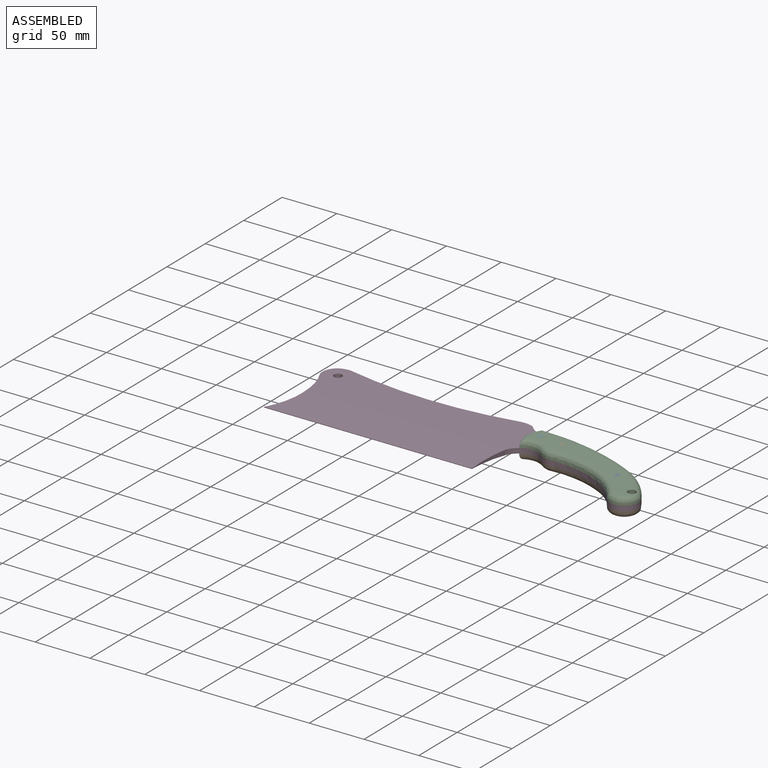
[diagram: assembled view]
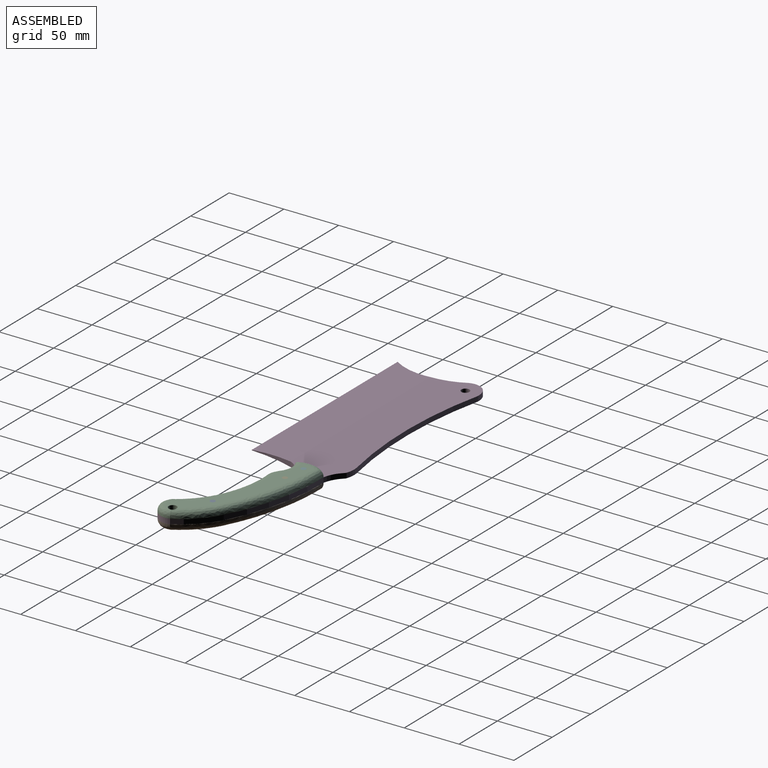
[diagram: assembled view, second angle]
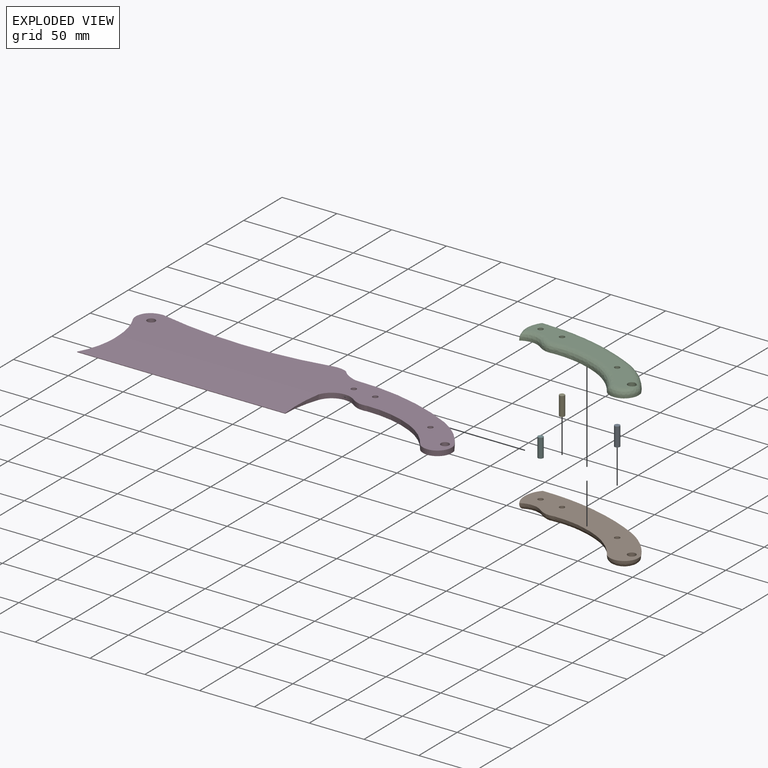
[diagram: exploded view]
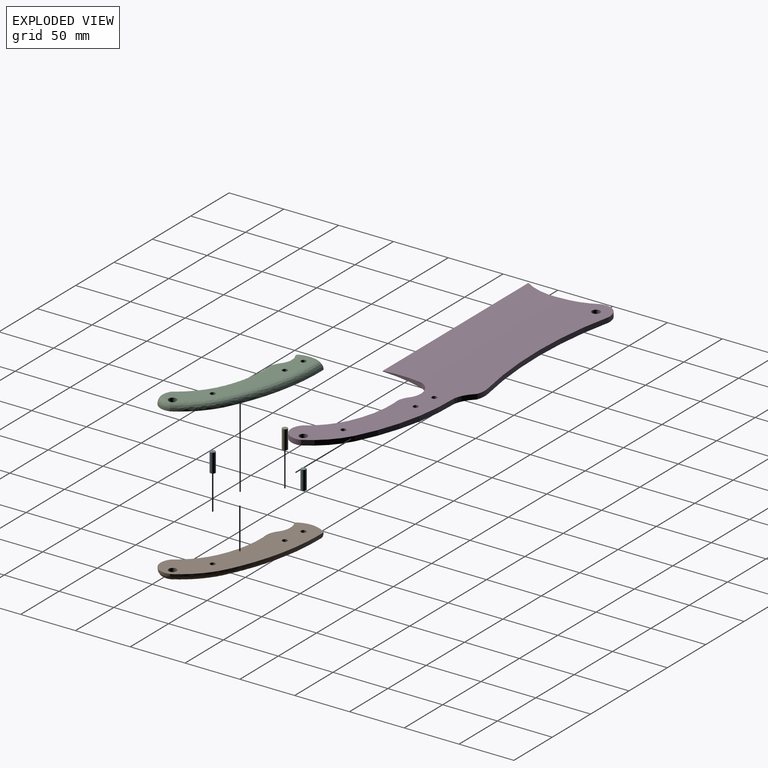
[diagram: exploded view, second angle]
ASSEMBLY  parts=6 mates=5
PART A: 3 faces, bbox 4.8x4.8x17.3 mm
  f0: cylinder r=2.37mm len=17.27mm, axis (0,0,-1), area 257.7mm2, adj f1,f2
  f1: plane 4.75x4.75mm, normal (0,0,1), area 17.7mm2, adj f0
  f2: plane 4.75x4.75mm, normal (0,0,-1), area 17.7mm2, adj f0
PART B: 24 faces, bbox 132.8x70.3x6.4 mm
  f0: cylinder r=74.91mm len=28.88mm, axis (0,0,-1), area 10.5mm2, adj f1,f12,f13,f19
  f1: cylinder r=204.16mm len=97.18mm, axis (0,0,-1), area 25.6mm2, adj f0,f2,f13,f21
  f2: cylinder r=22.68mm len=27.9mm, axis (0,0,-1), area 7.7mm2, adj f1,f3,f13,f23
  f3: cylinder r=17.37mm len=18.88mm, axis (0,0,-1), area 5.1mm2, adj f2,f4,f13,f22
  f4: cylinder r=20.76mm len=8.05mm, axis (0,0,-1), area 2.3mm2, adj f3,f5,f13,f20
  f5: cylinder r=21.4mm len=7.73mm, axis (0,0,-1), area 2mm2, adj f4,f6,f13,f18
  f6: cylinder r=97.54mm len=45.24mm, axis (0,0,-1), area 11.9mm2, adj f5,f7,f13,f16
  f7: cylinder r=65.81mm len=26.4mm, axis (0,0,-1), area 9.1mm2, adj f6,f12,f13,f15
  f8: cylinder r=2.37mm len=6.35mm, axis (0,0,-1), area 94.5mm2, adj f13,f14
  f9: cylinder r=2.37mm len=6.35mm, axis (0,0,-1), area 94.5mm2, adj f13,f14
  f10: cylinder r=2.37mm len=6.35mm, axis (0,0,-1), area 94.5mm2, adj f13,f14
  f11: cylinder r=3.68mm len=7.36mm, axis (0,0,-1), area 144.9mm2, adj f13,f14,f17,f19
  f12: cylinder r=13.18mm len=22.38mm, axis (0,0,-1), area 8.9mm2, adj f0,f7,f13,f17
  f13: plane 132.57x69.18mm, normal (0,0,1), area 3659.8mm2, adj f0,f1,f2,f3,f4,f5,f6,f7
  f14: plane 120.23x57.09mm, normal (0,0,-1), area 1808mm2, adj f8,f9,f10,f11,f15,f16,f17,f18
  f15: bspline ~31.53x28.98mm, area 361.5mm2, adj f7,f14,f16,f17
  f16: bspline ~48.6x15.95mm, area 474.9mm2, adj f6,f14,f15,f18
  f17: bspline ~22.38x17.27mm, area 280.5mm2, adj f11,f12,f14,f15,f19
  f18: bspline ~9.14x6.64mm, area 70.5mm2, adj f5,f14,f16,f20
  f19: bspline ~31.86x31.85mm, area 388.6mm2, adj f0,f11,f14,f17,f21
  f20: bspline ~10.64x9.4mm, area 81.9mm2, adj f4,f14,f18,f22
  f21: bspline ~97.18x28.43mm, area 973.6mm2, adj f1,f14,f19,f23
  f22: bspline ~25.88x9.06mm, area 193.4mm2, adj f3,f14,f20,f23
  f23: bspline ~30.21x11.39mm, area 226.9mm2, adj f2,f14,f21,f22
PART C: 24 faces, bbox 132.8x70.3x6.4 mm
  f0: cylinder r=74.91mm len=28.88mm, axis (0,0,-1), area 10.5mm2, adj f1,f12,f14,f19
  f1: cylinder r=204.16mm len=97.18mm, axis (0,0,-1), area 25.6mm2, adj f0,f2,f14,f21
  f2: cylinder r=22.68mm len=27.9mm, axis (0,0,-1), area 7.7mm2, adj f1,f3,f14,f23
  f3: cylinder r=17.37mm len=18.88mm, axis (0,0,-1), area 5.1mm2, adj f2,f4,f14,f22
  f4: cylinder r=20.76mm len=8.05mm, axis (0,0,-1), area 2.3mm2, adj f3,f5,f14,f20
  f5: cylinder r=21.4mm len=7.73mm, axis (0,0,-1), area 2mm2, adj f4,f6,f14,f18
  f6: cylinder r=97.54mm len=45.24mm, axis (0,0,-1), area 11.9mm2, adj f5,f7,f14,f16
  f7: cylinder r=65.81mm len=26.4mm, axis (0,0,-1), area 9.1mm2, adj f6,f12,f14,f15
  f8: cylinder r=2.37mm len=6.35mm, axis (0,0,-1), area 94.5mm2, adj f13,f14
  f9: cylinder r=2.37mm len=6.35mm, axis (0,0,-1), area 94.5mm2, adj f13,f14
  f10: cylinder r=2.37mm len=6.35mm, axis (0,0,-1), area 94.5mm2, adj f13,f14
  f11: cylinder r=3.68mm len=7.36mm, axis (0,0,-1), area 144.9mm2, adj f13,f14,f17,f19
  f12: cylinder r=13.18mm len=22.38mm, axis (0,0,-1), area 8.9mm2, adj f0,f7,f14,f17
  f13: plane 120.23x57.1mm, normal (0,0,1), area 1808.3mm2, adj f8,f9,f10,f11,f15,f16,f17,f18
  f14: plane 132.57x69.18mm, normal (0,0,-1), area 3659.8mm2, adj f0,f1,f2,f3,f4,f5,f6,f7
  f15: bspline ~31.54x28.99mm, area 361.4mm2, adj f7,f13,f16,f17
  f16: bspline ~48.59x15.94mm, area 474.9mm2, adj f6,f13,f15,f18
  f17: bspline ~22.38x17.27mm, area 280.5mm2, adj f11,f12,f13,f15,f19
  f18: bspline ~9.14x6.64mm, area 70.5mm2, adj f5,f13,f16,f20
  f19: bspline ~31.86x31.85mm, area 388.6mm2, adj f0,f11,f13,f17,f21
  f20: bspline ~10.64x9.4mm, area 81.9mm2, adj f4,f13,f18,f22
  f21: bspline ~97.18x28.43mm, area 973.6mm2, adj f1,f13,f19,f23
  f22: bspline ~25.88x9.06mm, area 193.4mm2, adj f3,f13,f20,f23
  f23: bspline ~30.21x11.39mm, area 226.9mm2, adj f2,f13,f21,f22
PART D: 26 faces, bbox 329.3x86.4x4.6 mm
  f0: plane 189.86x0.5mm, normal (0,-1,0), area 94.9mm2, adj f1,f20,f24,f25
  f1: cylinder r=122.95mm len=38.12mm, axis (0,0,-1), area 97.6mm2, adj f0,f2,f22,f23,f24,f25
  f2: cylinder r=17.37mm len=25.6mm, axis (0,0,-1), area 140.6mm2, adj f1,f3,f22,f23
  f3: cylinder r=20.76mm len=8.05mm, axis (0,0,-1), area 41.8mm2, adj f2,f4,f22,f23
  f4: cylinder r=21.4mm len=7.73mm, axis (0,0,-1), area 35.5mm2, adj f3,f5,f22,f23
  f5: cylinder r=97.54mm len=45.24mm, axis (0,0,-1), area 213.7mm2, adj f4,f6,f22,f23
  f6: cylinder r=65.81mm len=26.4mm, axis (0,0,-1), area 163.6mm2, adj f5,f7,f22,f23
  f7: cylinder r=13.18mm len=22.38mm, axis (0,0,-1), area 160.2mm2, adj f6,f8,f22,f23
  f8: cylinder r=74.91mm len=28.88mm, axis (0,0,-1), area 189.1mm2, adj f7,f9,f22,f23
  f9: cylinder r=204.16mm len=97.18mm, axis (0,0,-1), area 461.3mm2, adj f8,f10,f22,f23
  f10: cylinder r=27.54mm len=14.34mm, axis (0,0,-1), area 75.7mm2, adj f9,f11,f22,f23
  f11: cylinder r=5.84mm len=4.57mm, axis (0,0,-1), area 12.8mm2, adj f10,f12,f22,f23
  f12: cylinder r=22.42mm len=12.07mm, axis (0,0,-1), area 56.1mm2, adj f11,f13,f22,f23
  f13: cylinder r=373.39mm len=155.45mm, axis (0,0,-1), area 716mm2, adj f12,f14,f22,f23
  f14: cylinder r=18.65mm len=8.32mm, axis (0,0,-1), area 39.1mm2, adj f13,f15,f22,f23
  f15: cylinder r=13.34mm len=17.02mm, axis (0,0,-1), area 92mm2, adj f14,f20,f22,f23
  f16: cylinder r=3.68mm len=7.36mm, axis (0,0,-1), area 105.7mm2, adj f22,f23
  f17: cylinder r=2.37mm len=4.74mm, axis (0,0,-1), area 68.1mm2, adj f22,f23
  f18: cylinder r=2.37mm len=4.74mm, axis (0,0,-1), area 68.1mm2, adj f22,f23
  f19: cylinder r=2.37mm len=4.74mm, axis (0,0,-1), area 68.1mm2, adj f22,f23
  f20: cylinder r=64.17mm len=67.73mm, axis (0,0,-1), area 241.7mm2, adj f0,f15,f22,f23,f24,f25
  f21: cylinder r=3.71mm len=7.42mm, axis (0,0,-1), area 106.6mm2, adj f22,f23
  f22: plane 326.59x81.3mm, normal (0,0,1), area 11732.9mm2, adj f1,f2,f3,f4,f5,f6,f7,f8
  f23: plane 326.59x81.3mm, normal (0,0,-1), area 11732.9mm2, adj f1,f2,f3,f4,f5,f6,f7,f8
  f24: plane 193.85x38.12mm, normal (0,-0.05,-1), area 6976.2mm2, adj f0,f1,f20,f23
  f25: plane 193.85x38.12mm, normal (0,-0.05,1), area 6976.2mm2, adj f0,f1,f20,f22
PART E: same geometry as A
PART F: same geometry as A
PLACE A t=(64.6,-19.55,20.57)mm
PLACE B t=(9.68,-2.58,20.57)mm
PLACE C t=(9.68,-2.58,31.49)mm
PLACE D t=(-0.66,-24.27,26.92)mm
PLACE E t=(-0.11,1.02,20.57)mm
PLACE F t=(-21.25,3.23,20.57)mm
MATE fastened C.f8 <-> D.f19  axis (0,0,-1) through (-21.25,3.23,31.49)mm
MATE fastened A.f0 <-> B.f10  axis (0,0,-1) through (64.6,-19.55,20.57)mm
MATE fastened B.f8 <-> D.f19  axis (0,0,1) through (-21.25,3.23,26.92)mm
MATE fastened F.f0 <-> B.f8  axis (0,0,-1) through (-21.25,3.23,20.57)mm
MATE fastened E.f0 <-> B.f9  axis (0,0,-1) through (-0.11,1.02,20.57)mm
